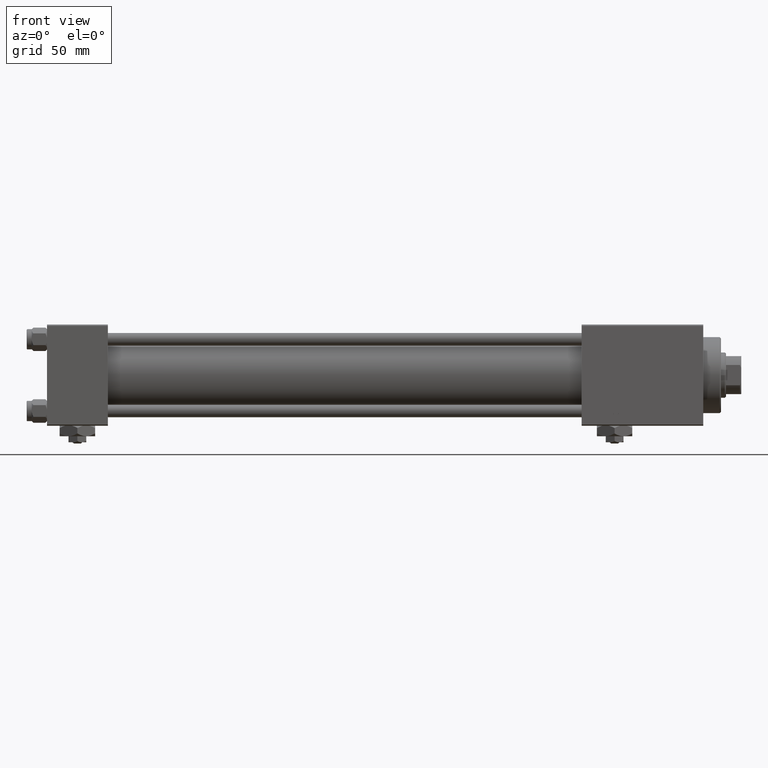
[diagram: clean part render]
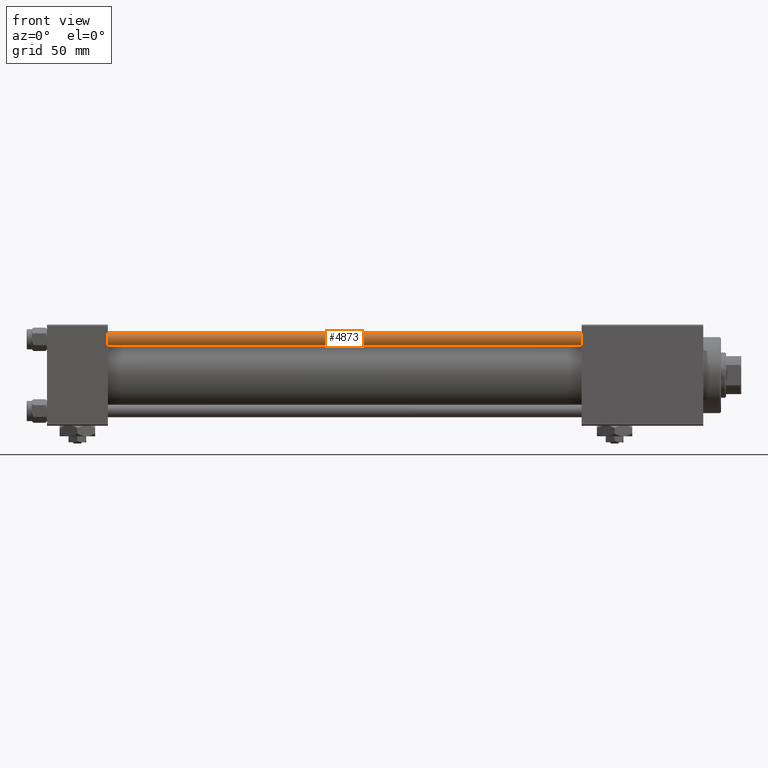
[diagram: same view with one face highlighted and labeled with its STEP entity id]
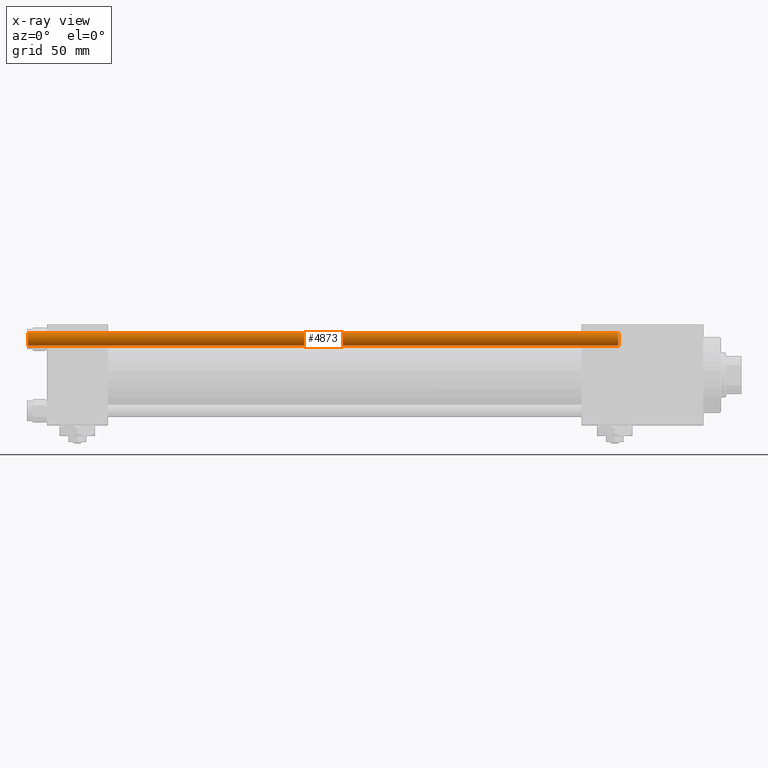
[diagram: x-ray of the same camera — body ghosted, the highlighted face saturated]
A machine part, front view. The second image highlights one B-rep face of the part: STEP entity #4873.
The next image is the same camera in x-ray: the body ghosted, the highlighted face saturated — about 0% of this face is hidden behind the body in this view.
In plain terms, the highlighted cylindrical surface (edge-blend (fillet) strip) has radius 2.5 mm, axis along (1, 0, -0).
Its self-contained STEP definition (entity closure, byte-faithful):
#599 = DIRECTION ( 'NONE',  ( -0.000000000000000000, -0.000000000000000000, 1.000000000000000000 ) ) ;
#1707 = EDGE_CURVE ( 'NONE', #17046, #14481, #45787, .T. ) ;
#2051 = DIRECTION ( 'NONE',  ( -0.000000000000000000, -0.000000000000000000, -1.000000000000000000 ) ) ;
#2419 = CIRCLE ( 'NONE', #20934, 2.500000000000000000 ) ;
#2441 = ORIENTED_EDGE ( 'NONE', *, *, #7138, .T. ) ;
#3160 = VERTEX_POINT ( 'NONE', #46128 ) ;
#4580 = EDGE_LOOP ( 'NONE', ( #50824, #2441, #40795, #43653 ) ) ;
#4873 = ADVANCED_FACE ( 'NONE', ( #44772 ), #32668, .T. ) ;
#7138 = EDGE_CURVE ( 'NONE', #20072, #3160, #48231, .T. ) ;
#7643 = DIRECTION ( 'NONE',  ( -0.000000000000000000, -0.000000000000000000, -1.000000000000000000 ) ) ;
#8498 = AXIS2_PLACEMENT_3D ( 'NONE', #17162, #48801, #41402 ) ;
#13311 = CARTESIAN_POINT ( 'NONE',  ( 2.500000000000000000, 3.061616997868383141E-16, 233.5000000000000284 ) ) ;
#14481 = VERTEX_POINT ( 'NONE', #24799 ) ;
#16658 = DIRECTION ( 'NONE',  ( 1.000000000000000000, 0.000000000000000000, 0.000000000000000000 ) ) ;
#17046 = VERTEX_POINT ( 'NONE', #17720 ) ;
#17162 = CARTESIAN_POINT ( 'NONE',  ( 0.000000000000000000, 0.000000000000000000, 233.5000000000000284 ) ) ;
#17720 = CARTESIAN_POINT ( 'NONE',  ( -2.500000000000000000, 0.000000000000000000, 233.5000000000000284 ) ) ;
#20072 = VERTEX_POINT ( 'NONE', #13311 ) ;
#20614 = CARTESIAN_POINT ( 'NONE',  ( 0.000000000000000000, 0.000000000000000000, 0.5000000000000281997 ) ) ;
#20934 = AXIS2_PLACEMENT_3D ( 'NONE', #20614, #599, #16658 ) ;
#21064 = DIRECTION ( 'NONE',  ( -1.000000000000000000, 0.000000000000000000, 0.000000000000000000 ) ) ;
#21587 = DIRECTION ( 'NONE',  ( -0.000000000000000000, -0.000000000000000000, -1.000000000000000000 ) ) ;
#23427 = EDGE_CURVE ( 'NONE', #3160, #14481, #2419, .T. ) ;
#23556 = VECTOR ( 'NONE', #2051, 1000.000000000000000 ) ;
#24799 = CARTESIAN_POINT ( 'NONE',  ( -2.500000000000000000, 0.000000000000000000, 0.5000000000000281997 ) ) ;
#32668 = CYLINDRICAL_SURFACE ( 'NONE', #37952, 2.500000000000000000 ) ;
#34596 = CIRCLE ( 'NONE', #8498, 2.500000000000000000 ) ;
#36382 = VECTOR ( 'NONE', #7643, 1000.000000000000000 ) ;
#37952 = AXIS2_PLACEMENT_3D ( 'NONE', #48748, #21587, #21064 ) ;
#38078 = EDGE_CURVE ( 'NONE', #17046, #20072, #34596, .T. ) ;
#38141 = CARTESIAN_POINT ( 'NONE',  ( -2.500000000000000000, 0.000000000000000000, 234.0000000000000000 ) ) ;
#39537 = CARTESIAN_POINT ( 'NONE',  ( 2.500000000000000000, 3.061616997868383141E-16, 234.0000000000000000 ) ) ;
#40795 = ORIENTED_EDGE ( 'NONE', *, *, #23427, .T. ) ;
#41402 = DIRECTION ( 'NONE',  ( 1.000000000000000000, 0.000000000000000000, 0.000000000000000000 ) ) ;
#43653 = ORIENTED_EDGE ( 'NONE', *, *, #1707, .F. ) ;
#44772 = FACE_OUTER_BOUND ( 'NONE', #4580, .T. ) ;
#45787 = LINE ( 'NONE', #38141, #23556 ) ;
#46128 = CARTESIAN_POINT ( 'NONE',  ( 2.500000000000000000, 3.061616997868383141E-16, 0.5000000000000281997 ) ) ;
#48231 = LINE ( 'NONE', #39537, #36382 ) ;
#48748 = CARTESIAN_POINT ( 'NONE',  ( 0.000000000000000000, 0.000000000000000000, 234.0000000000000000 ) ) ;
#48801 = DIRECTION ( 'NONE',  ( 0.000000000000000000, 0.000000000000000000, -1.000000000000000000 ) ) ;
#50824 = ORIENTED_EDGE ( 'NONE', *, *, #38078, .T. ) ;